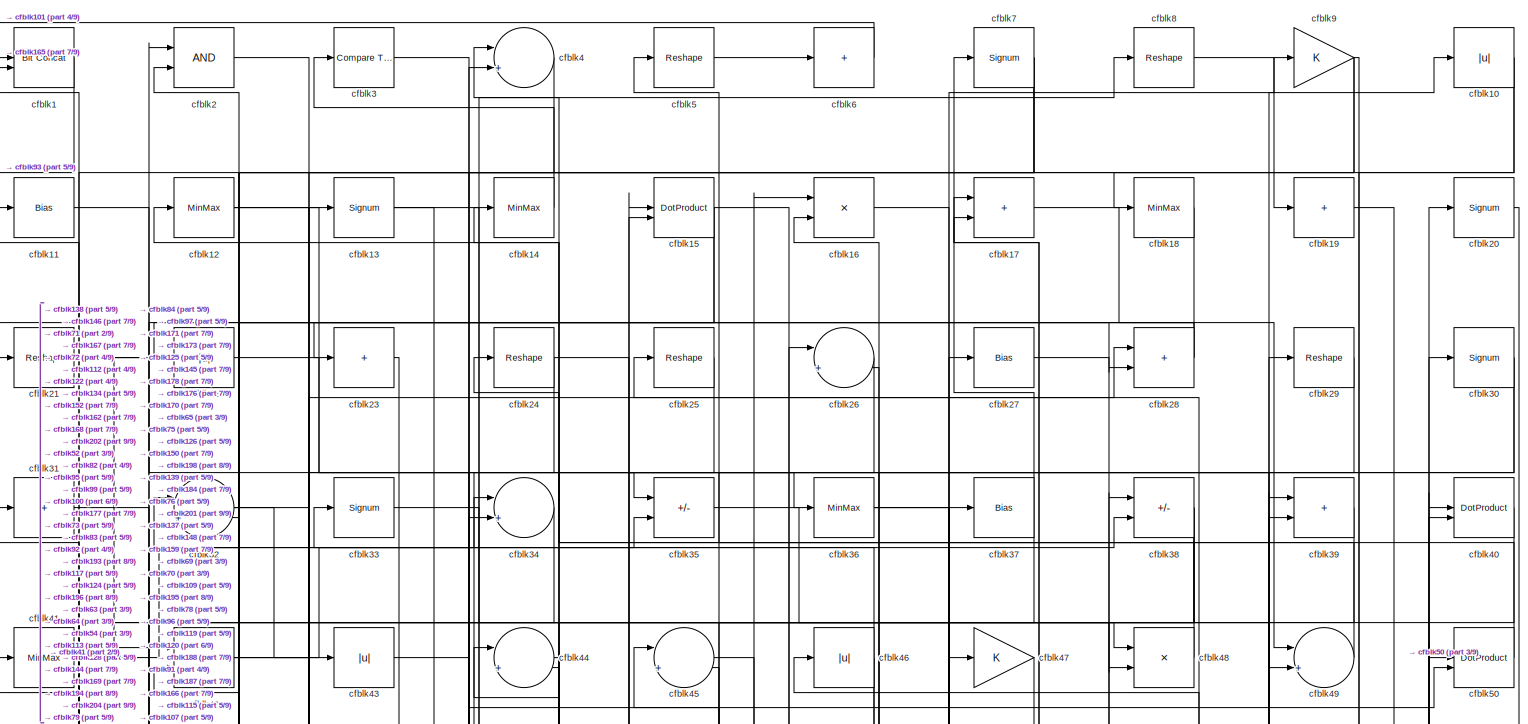
[diagram: root canvas - part 1/9, full width, top band]
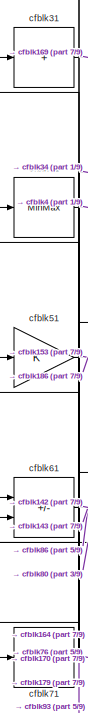
[diagram: root canvas - part 2/9, top left region]
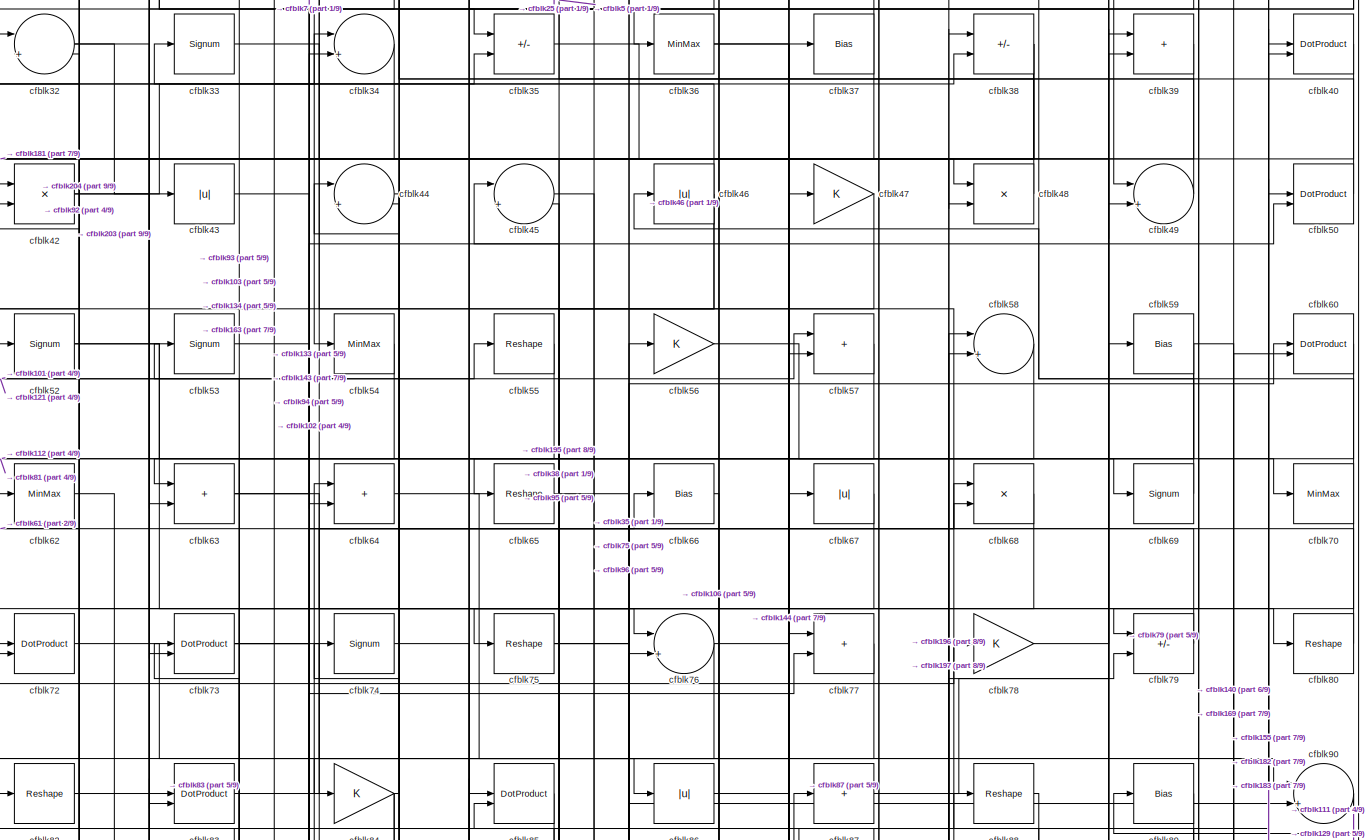
[diagram: root canvas - part 3/9, full width, top band]
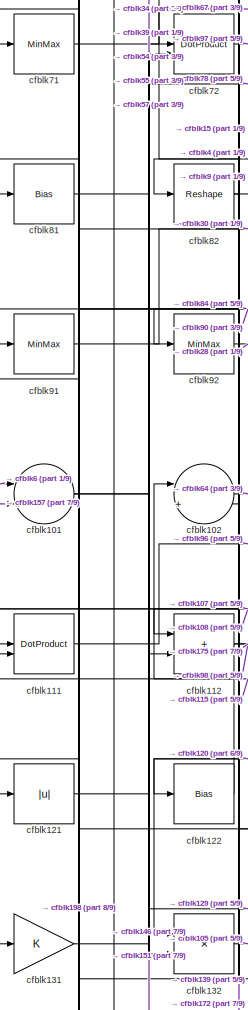
[diagram: root canvas - part 4/9, middle left region]
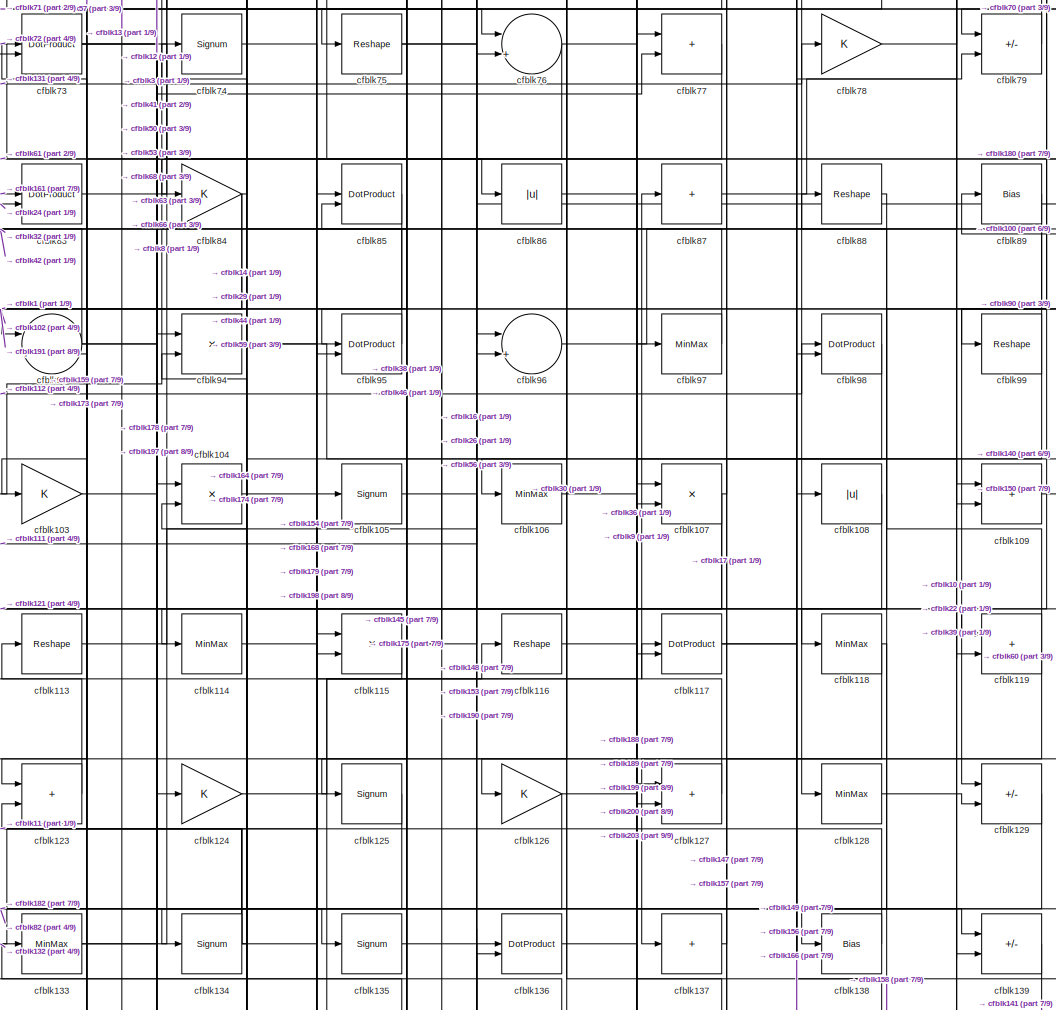
[diagram: root canvas - part 5/9, central region]
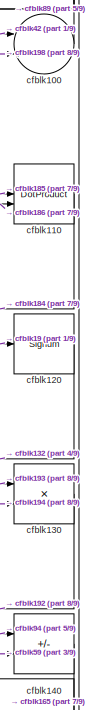
[diagram: root canvas - part 6/9, middle right region]
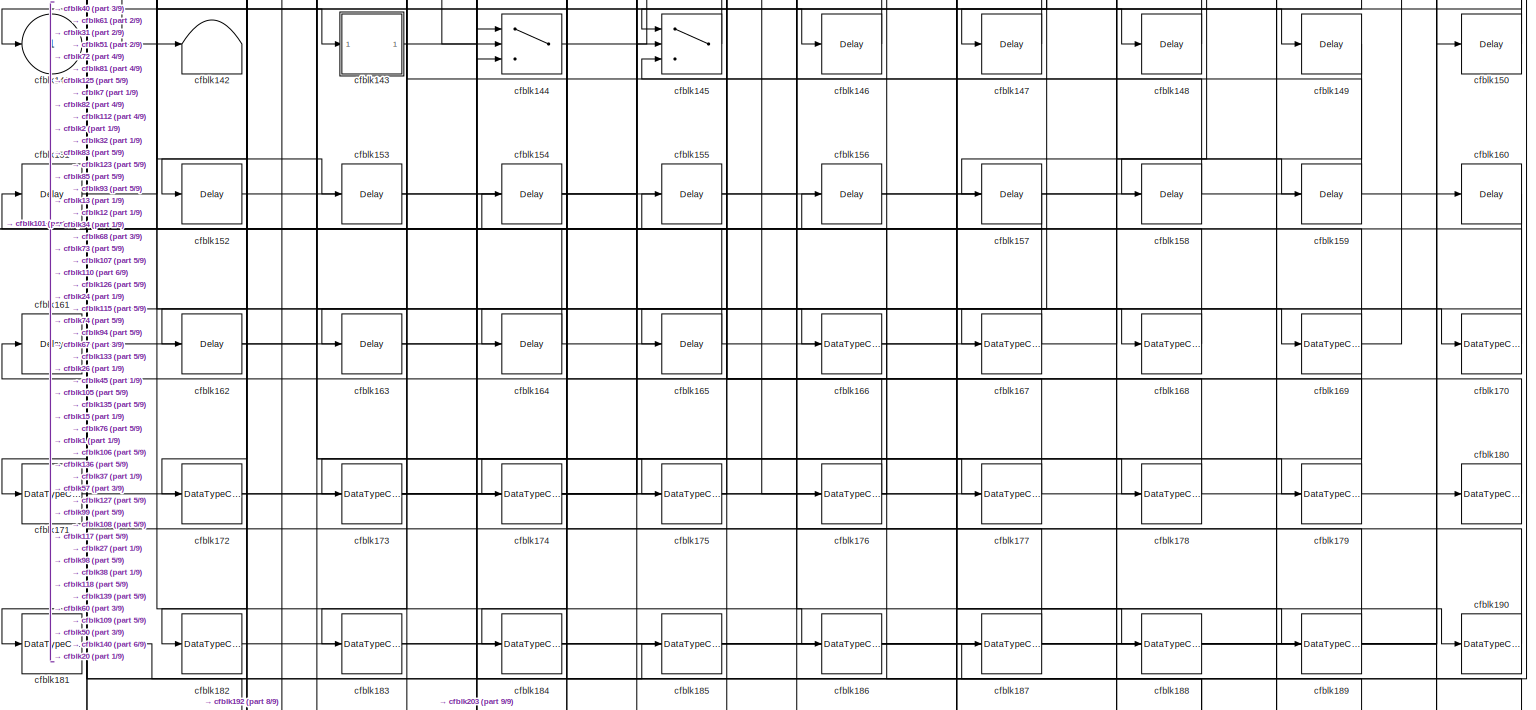
[diagram: root canvas - part 7/9, full width, bottom band]
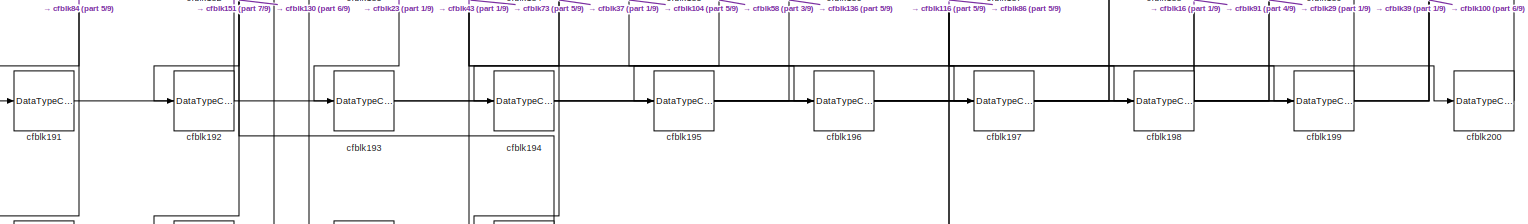
[diagram: root canvas - part 8/9, full width, bottom band]
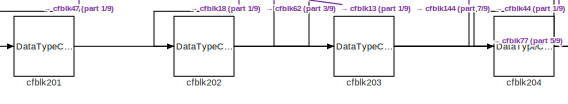
[diagram: root canvas - part 9/9, bottom left region]
MODEL slx_3ed110b4a534
KIND model
CONFIG AbsTol = auto
CONFIG EnableMultiTasking = off
CONFIG FixedStep = auto
CONFIG MaxStep = auto
CONFIG MinStep = auto
CONFIG RelTol = 1e-3
CONFIG SampleTimeConstraint = Unconstrained
CONFIG SolverName = VariableStepAuto
CONFIG StartTime = 0.0
CONFIG StopTime = 10.0
BLOCK [Reference] cfblk1  REF=hdlsllib/Logic and Bit
Operations/Bit Concat
  SourceBlock = hdlsllib/Logic and Bit\nOperations/Bit Concat
  SourceType = Bit Concat
BLOCK [Abs] cfblk10
  SaturateOnIntegerOverflow = off
BLOCK [Sum] cfblk100
  Inputs = |++
BLOCK [Sum] cfblk101
  Inputs = |++
BLOCK [Sum] cfblk102
  Inputs = |++
BLOCK [Gain] cfblk103
BLOCK [Product] cfblk104
  Inputs = */
  RndMeth = Zero
  SaturateOnIntegerOverflow = on
BLOCK [Signum] cfblk105
BLOCK [MinMax] cfblk106
BLOCK [Product] cfblk107
  Inputs = */
  RndMeth = Zero
  SaturateOnIntegerOverflow = on
BLOCK [Abs] cfblk108
  SaturateOnIntegerOverflow = off
BLOCK [Sum] cfblk109
  IconShape = rectangular
BLOCK [Bias] cfblk11
  Bias = 0.0
  SaturateOnIntegerOverflow = off
BLOCK [DotProduct] cfblk110
  OutDataTypeStr = Inherit: Inherit via internal rule
BLOCK [DotProduct] cfblk111
  OutDataTypeStr = Inherit: Inherit via internal rule
BLOCK [Sum] cfblk112
  IconShape = rectangular
BLOCK [Reshape] cfblk113
BLOCK [MinMax] cfblk114
BLOCK [Product] cfblk115
  Inputs = */
  RndMeth = Zero
  SaturateOnIntegerOverflow = on
BLOCK [Reshape] cfblk116
BLOCK [DotProduct] cfblk117
  OutDataTypeStr = Inherit: Inherit via internal rule
BLOCK [MinMax] cfblk118
BLOCK [Sum] cfblk119
  IconShape = rectangular
BLOCK [MinMax] cfblk12
BLOCK [Signum] cfblk120
BLOCK [Abs] cfblk121
  SaturateOnIntegerOverflow = off
BLOCK [Bias] cfblk122
  Bias = 0.0
  SaturateOnIntegerOverflow = off
BLOCK [Sum] cfblk123
  IconShape = rectangular
BLOCK [Gain] cfblk124
BLOCK [Signum] cfblk125
BLOCK [Gain] cfblk126
BLOCK [Sum] cfblk127
  IconShape = rectangular
BLOCK [MinMax] cfblk128
BLOCK [Sum] cfblk129
  IconShape = rectangular
  Inputs = +-
BLOCK [Signum] cfblk13
BLOCK [Product] cfblk130
  Inputs = */
  RndMeth = Zero
  SaturateOnIntegerOverflow = on
BLOCK [Gain] cfblk131
BLOCK [Product] cfblk132
  Inputs = */
  RndMeth = Zero
  SaturateOnIntegerOverflow = on
BLOCK [MinMax] cfblk133
BLOCK [Signum] cfblk134
BLOCK [Signum] cfblk135
BLOCK [DotProduct] cfblk136
  OutDataTypeStr = Inherit: Inherit via internal rule
BLOCK [Sum] cfblk137
  IconShape = rectangular
  Inputs = +
BLOCK [Bias] cfblk138
  Bias = 0.0
  SaturateOnIntegerOverflow = off
BLOCK [Sum] cfblk139
  IconShape = rectangular
  Inputs = +-
BLOCK [MinMax] cfblk14
BLOCK [Sum] cfblk140
  IconShape = rectangular
  Inputs = +-
BLOCK [Outport] cfblk141
  VectorParamsAs1DForOutWhenUnconnected = off
BLOCK [Terminator] cfblk142
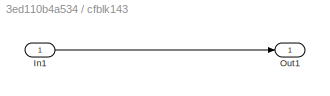
BLOCK [SubSystem] cfblk143
  LibrarySourceBlock = hdlsllib/Ports &\nSubsystems/Subsystem
BLOCK [Inport] cfblk143/In1
BLOCK [Outport] cfblk143/Out1
BLOCK [Switch] cfblk144
  InputSameDT = off
  SaturateOnIntegerOverflow = off
BLOCK [Switch] cfblk145
  InputSameDT = off
  SaturateOnIntegerOverflow = off
BLOCK [Delay] cfblk146
  InputPortMap = u0
  SampleTime = 1
BLOCK [Delay] cfblk147
  InputPortMap = u0
  SampleTime = 1
BLOCK [Delay] cfblk148
  InputPortMap = u0
  SampleTime = 1
BLOCK [Delay] cfblk149
  InputPortMap = u0
  SampleTime = 1
BLOCK [DotProduct] cfblk15
  OutDataTypeStr = Inherit: Inherit via internal rule
BLOCK [Delay] cfblk150
  InputPortMap = u0
  SampleTime = 1
BLOCK [Delay] cfblk151
  InputPortMap = u0
  SampleTime = 1
BLOCK [Delay] cfblk152
  InputPortMap = u0
  SampleTime = 1
BLOCK [Delay] cfblk153
  InputPortMap = u0
  SampleTime = 1
BLOCK [Delay] cfblk154
  InputPortMap = u0
  SampleTime = 1
BLOCK [Delay] cfblk155
  InputPortMap = u0
  SampleTime = 1
BLOCK [Delay] cfblk156
  InputPortMap = u0
  SampleTime = 1
BLOCK [Delay] cfblk157
  InputPortMap = u0
  SampleTime = 1
BLOCK [Delay] cfblk158
  InputPortMap = u0
  SampleTime = 1
BLOCK [Delay] cfblk159
  InputPortMap = u0
  SampleTime = 1
BLOCK [Product] cfblk16
  Inputs = */
  RndMeth = Zero
  SaturateOnIntegerOverflow = on
BLOCK [Delay] cfblk160
  InputPortMap = u0
  SampleTime = 1
BLOCK [Delay] cfblk161
  InputPortMap = u0
  SampleTime = 1
BLOCK [Delay] cfblk162
  InputPortMap = u0
  SampleTime = 1
BLOCK [Delay] cfblk163
  InputPortMap = u0
  SampleTime = 1
BLOCK [Delay] cfblk164
  InputPortMap = u0
  SampleTime = 1
BLOCK [Delay] cfblk165
  InputPortMap = u0
  SampleTime = 1
BLOCK [DataTypeConversion] cfblk166
  OutDataTypeStr = uint8
  RndMeth = Floor
  SaturateOnIntegerOverflow = off
BLOCK [DataTypeConversion] cfblk167
  OutDataTypeStr = uint8
  RndMeth = Floor
  SaturateOnIntegerOverflow = off
BLOCK [DataTypeConversion] cfblk168
  OutDataTypeStr = uint8
  RndMeth = Floor
  SaturateOnIntegerOverflow = off
BLOCK [DataTypeConversion] cfblk169
  RndMeth = Floor
  SaturateOnIntegerOverflow = off
BLOCK [Sum] cfblk17
  IconShape = rectangular
BLOCK [DataTypeConversion] cfblk170
  OutDataTypeStr = uint8
  RndMeth = Floor
  SaturateOnIntegerOverflow = off
BLOCK [DataTypeConversion] cfblk171
  OutDataTypeStr = uint8
  RndMeth = Floor
  SaturateOnIntegerOverflow = off
BLOCK [DataTypeConversion] cfblk172
  OutDataTypeStr = uint8
  RndMeth = Floor
  SaturateOnIntegerOverflow = off
BLOCK [DataTypeConversion] cfblk173
  RndMeth = Floor
  SaturateOnIntegerOverflow = off
BLOCK [DataTypeConversion] cfblk174
  OutDataTypeStr = uint8
  RndMeth = Floor
  SaturateOnIntegerOverflow = off
BLOCK [DataTypeConversion] cfblk175
  OutDataTypeStr = uint8
  RndMeth = Floor
  SaturateOnIntegerOverflow = off
BLOCK [DataTypeConversion] cfblk176
  RndMeth = Floor
  SaturateOnIntegerOverflow = off
BLOCK [DataTypeConversion] cfblk177
  OutDataTypeStr = uint8
  RndMeth = Floor
  SaturateOnIntegerOverflow = off
BLOCK [DataTypeConversion] cfblk178
  OutDataTypeStr = uint8
  RndMeth = Floor
  SaturateOnIntegerOverflow = off
BLOCK [DataTypeConversion] cfblk179
  OutDataTypeStr = uint8
  RndMeth = Floor
  SaturateOnIntegerOverflow = off
BLOCK [MinMax] cfblk18
BLOCK [DataTypeConversion] cfblk180
  OutDataTypeStr = uint8
  RndMeth = Floor
  SaturateOnIntegerOverflow = off
BLOCK [DataTypeConversion] cfblk181
  OutDataTypeStr = uint8
  RndMeth = Floor
  SaturateOnIntegerOverflow = off
BLOCK [DataTypeConversion] cfblk182
  OutDataTypeStr = uint8
  RndMeth = Floor
  SaturateOnIntegerOverflow = off
BLOCK [DataTypeConversion] cfblk183
  OutDataTypeStr = uint8
  RndMeth = Floor
  SaturateOnIntegerOverflow = off
BLOCK [DataTypeConversion] cfblk184
  OutDataTypeStr = uint8
  RndMeth = Floor
  SaturateOnIntegerOverflow = off
BLOCK [DataTypeConversion] cfblk185
  OutDataTypeStr = uint8
  RndMeth = Floor
  SaturateOnIntegerOverflow = off
BLOCK [DataTypeConversion] cfblk186
  OutDataTypeStr = uint8
  RndMeth = Floor
  SaturateOnIntegerOverflow = off
BLOCK [DataTypeConversion] cfblk187
  OutDataTypeStr = uint8
  RndMeth = Floor
  SaturateOnIntegerOverflow = off
BLOCK [DataTypeConversion] cfblk188
  OutDataTypeStr = uint8
  RndMeth = Floor
  SaturateOnIntegerOverflow = off
BLOCK [DataTypeConversion] cfblk189
  OutDataTypeStr = uint8
  RndMeth = Floor
  SaturateOnIntegerOverflow = off
BLOCK [Sum] cfblk19
  IconShape = rectangular
  Inputs = +
BLOCK [DataTypeConversion] cfblk190
  OutDataTypeStr = uint8
  RndMeth = Floor
  SaturateOnIntegerOverflow = off
BLOCK [DataTypeConversion] cfblk191
  OutDataTypeStr = uint8
  RndMeth = Floor
  SaturateOnIntegerOverflow = off
BLOCK [DataTypeConversion] cfblk192
  OutDataTypeStr = uint8
  RndMeth = Floor
  SaturateOnIntegerOverflow = off
BLOCK [DataTypeConversion] cfblk193
  OutDataTypeStr = uint8
  RndMeth = Floor
  SaturateOnIntegerOverflow = off
BLOCK [DataTypeConversion] cfblk194
  OutDataTypeStr = uint8
  RndMeth = Floor
  SaturateOnIntegerOverflow = off
BLOCK [DataTypeConversion] cfblk195
  RndMeth = Floor
  SaturateOnIntegerOverflow = off
BLOCK [DataTypeConversion] cfblk196
  OutDataTypeStr = uint8
  RndMeth = Floor
  SaturateOnIntegerOverflow = off
BLOCK [DataTypeConversion] cfblk197
  OutDataTypeStr = uint8
  RndMeth = Floor
  SaturateOnIntegerOverflow = off
BLOCK [DataTypeConversion] cfblk198
  RndMeth = Floor
  SaturateOnIntegerOverflow = off
BLOCK [DataTypeConversion] cfblk199
  OutDataTypeStr = uint8
  RndMeth = Floor
  SaturateOnIntegerOverflow = off
BLOCK [Logic] cfblk2
  AllPortsSameDT = off
  OutDataTypeStr = boolean
BLOCK [Signum] cfblk20
BLOCK [DataTypeConversion] cfblk200
  OutDataTypeStr = uint8
  RndMeth = Floor
  SaturateOnIntegerOverflow = off
BLOCK [DataTypeConversion] cfblk201
  OutDataTypeStr = uint8
  RndMeth = Floor
  SaturateOnIntegerOverflow = off
BLOCK [DataTypeConversion] cfblk202
  OutDataTypeStr = uint8
  RndMeth = Floor
  SaturateOnIntegerOverflow = off
BLOCK [DataTypeConversion] cfblk203
  RndMeth = Floor
  SaturateOnIntegerOverflow = off
BLOCK [DataTypeConversion] cfblk204
  OutDataTypeStr = uint8
  RndMeth = Floor
  SaturateOnIntegerOverflow = off
BLOCK [Reshape] cfblk21
BLOCK [Abs] cfblk22
  SaturateOnIntegerOverflow = off
BLOCK [Sum] cfblk23
  IconShape = rectangular
  Inputs = +
BLOCK [Reshape] cfblk24
BLOCK [Reshape] cfblk25
BLOCK [Sum] cfblk26
  Inputs = |++
BLOCK [Bias] cfblk27
  Bias = 0.0
  SaturateOnIntegerOverflow = off
BLOCK [Sum] cfblk28
  IconShape = rectangular
BLOCK [Reshape] cfblk29
BLOCK [Reference] cfblk3  REF=hdlsllib/Logic and Bit
Operations/Compare
To Constant
  SourceBlock = hdlsllib/Logic and Bit\nOperations/Compare\nTo Constant
  SourceType = Compare To Constant
BLOCK [Signum] cfblk30
BLOCK [Sum] cfblk31
  IconShape = rectangular
  Inputs = +
BLOCK [Sum] cfblk32
  Inputs = |++
BLOCK [Signum] cfblk33
BLOCK [Sum] cfblk34
  Inputs = |++
BLOCK [Sum] cfblk35
  IconShape = rectangular
  Inputs = +-
BLOCK [MinMax] cfblk36
BLOCK [Bias] cfblk37
  Bias = 0.0
  SaturateOnIntegerOverflow = off
BLOCK [Sum] cfblk38
  IconShape = rectangular
  Inputs = +-
BLOCK [Sum] cfblk39
  IconShape = rectangular
BLOCK [Sum] cfblk4
  Inputs = |++
BLOCK [DotProduct] cfblk40
  OutDataTypeStr = Inherit: Inherit via internal rule
BLOCK [MinMax] cfblk41
BLOCK [Product] cfblk42
  Inputs = */
  RndMeth = Zero
  SaturateOnIntegerOverflow = on
BLOCK [Abs] cfblk43
  SaturateOnIntegerOverflow = off
BLOCK [Sum] cfblk44
  Inputs = |++
BLOCK [Sum] cfblk45
  Inputs = |++
BLOCK [Abs] cfblk46
  SaturateOnIntegerOverflow = off
BLOCK [Gain] cfblk47
BLOCK [Product] cfblk48
  Inputs = */
  RndMeth = Zero
  SaturateOnIntegerOverflow = on
BLOCK [Sum] cfblk49
  Inputs = |++
BLOCK [Reshape] cfblk5
BLOCK [DotProduct] cfblk50
  OutDataTypeStr = Inherit: Inherit via internal rule
BLOCK [Gain] cfblk51
BLOCK [Signum] cfblk52
BLOCK [Signum] cfblk53
BLOCK [MinMax] cfblk54
BLOCK [Reshape] cfblk55
BLOCK [Gain] cfblk56
BLOCK [Sum] cfblk57
  IconShape = rectangular
BLOCK [Sum] cfblk58
  Inputs = |++
BLOCK [Bias] cfblk59
  Bias = 0.0
  SaturateOnIntegerOverflow = off
BLOCK [Sum] cfblk6
  IconShape = rectangular
  Inputs = +
BLOCK [DotProduct] cfblk60
  OutDataTypeStr = Inherit: Inherit via internal rule
BLOCK [Sum] cfblk61
  IconShape = rectangular
  Inputs = +-
BLOCK [MinMax] cfblk62
BLOCK [Sum] cfblk63
  IconShape = rectangular
BLOCK [Sum] cfblk64
  IconShape = rectangular
BLOCK [Reshape] cfblk65
BLOCK [Bias] cfblk66
  Bias = 0.0
  SaturateOnIntegerOverflow = off
BLOCK [Abs] cfblk67
  SaturateOnIntegerOverflow = off
BLOCK [Product] cfblk68
  Inputs = */
  RndMeth = Zero
  SaturateOnIntegerOverflow = on
BLOCK [Signum] cfblk69
BLOCK [Signum] cfblk7
BLOCK [MinMax] cfblk70
BLOCK [MinMax] cfblk71
BLOCK [DotProduct] cfblk72
  OutDataTypeStr = Inherit: Inherit via internal rule
BLOCK [DotProduct] cfblk73
  OutDataTypeStr = Inherit: Inherit via internal rule
BLOCK [Signum] cfblk74
BLOCK [Reshape] cfblk75
BLOCK [Sum] cfblk76
  Inputs = |++
BLOCK [Sum] cfblk77
  IconShape = rectangular
BLOCK [Gain] cfblk78
BLOCK [Sum] cfblk79
  IconShape = rectangular
  Inputs = +-
BLOCK [Reshape] cfblk8
BLOCK [Reshape] cfblk80
BLOCK [Bias] cfblk81
  Bias = 0.0
  SaturateOnIntegerOverflow = off
BLOCK [Reshape] cfblk82
BLOCK [DotProduct] cfblk83
  OutDataTypeStr = Inherit: Inherit via internal rule
BLOCK [Gain] cfblk84
BLOCK [DotProduct] cfblk85
  OutDataTypeStr = Inherit: Inherit via internal rule
BLOCK [Abs] cfblk86
  SaturateOnIntegerOverflow = off
BLOCK [Sum] cfblk87
  IconShape = rectangular
  Inputs = +
BLOCK [Reshape] cfblk88
BLOCK [Bias] cfblk89
  Bias = 0.0
  SaturateOnIntegerOverflow = off
BLOCK [Gain] cfblk9
BLOCK [Sum] cfblk90
  Inputs = |++
BLOCK [MinMax] cfblk91
BLOCK [MinMax] cfblk92
BLOCK [Sum] cfblk93
  Inputs = |++
BLOCK [Product] cfblk94
  Inputs = */
  RndMeth = Zero
  SaturateOnIntegerOverflow = on
BLOCK [DotProduct] cfblk95
  OutDataTypeStr = Inherit: Inherit via internal rule
BLOCK [Sum] cfblk96
  Inputs = |++
BLOCK [MinMax] cfblk97
BLOCK [DotProduct] cfblk98
  OutDataTypeStr = Inherit: Inherit via internal rule
BLOCK [Reshape] cfblk99
LINE cfblk100:1 -> cfblk89:1
NET cfblk101:1 -> cfblk34:1, cfblk55:1
LINE cfblk102:1 -> cfblk64:1
LINE cfblk103:1 -> cfblk68:1
LINE cfblk104:1 -> cfblk198:1
LINE cfblk105:1 -> cfblk148:1
LINE cfblk106:1 -> cfblk188:1
NET cfblk107:1 -> cfblk121:1, cfblk174:1, cfblk17:2
LINE cfblk108:1 -> cfblk131:1
LINE cfblk109:1 -> cfblk150:1
NET cfblk10:1 -> cfblk21:1, cfblk99:1
LINE cfblk110:1 -> cfblk184:1
LINE cfblk111:1 -> cfblk96:2
NET cfblk112:1 -> cfblk175:1, cfblk98:1
LINE cfblk113:1 -> cfblk8:1
LINE cfblk114:1 -> cfblk127:2
NET cfblk115:1 -> cfblk111:2, cfblk16:1, cfblk26:1
LINE cfblk116:1 -> cfblk199:1
NET cfblk117:1 -> cfblk149:1, cfblk79:2
NET cfblk118:1 -> cfblk157:1, cfblk158:1
NET cfblk119:1 -> cfblk137:1, cfblk88:1
LINE cfblk11:1 -> cfblk35:1
LINE cfblk120:1 -> cfblk132:1
LINE cfblk121:1 -> cfblk57:1
LINE cfblk122:1 -> cfblk102:1
LINE cfblk123:1 -> cfblk113:1
LINE cfblk124:1 -> cfblk117:1
LINE cfblk125:1 -> cfblk182:1
NET cfblk126:1 -> cfblk107:2, cfblk164:1
LINE cfblk127:1 -> cfblk87:1
LINE cfblk128:1 -> cfblk129:2
LINE cfblk129:1 -> cfblk132:2
NET cfblk12:1 -> cfblk117:2, cfblk144:1
LINE cfblk130:1 -> cfblk192:1
LINE cfblk131:1 -> cfblk78:1
LINE cfblk132:1 -> cfblk105:1
NET cfblk133:1 -> cfblk56:1, cfblk77:2
NET cfblk134:1 -> cfblk116:1, cfblk32:2, cfblk53:1, cfblk73:1, cfblk94:2
LINE cfblk135:1 -> cfblk190:1
LINE cfblk136:1 -> cfblk189:1
LINE cfblk137:1 -> cfblk17:1
LINE cfblk138:1 -> cfblk11:1
LINE cfblk139:1 -> cfblk141:1
NET cfblk13:1 -> cfblk128:1, cfblk144:2
LINE cfblk140:1 -> cfblk165:1
LINE cfblk143/In1:1 -> cfblk143/Out1:1
LINE cfblk143:1 -> cfblk68:2
LINE cfblk144:1 -> cfblk67:1
LINE cfblk145:1 -> cfblk133:1
LINE cfblk146:1 -> cfblk1:2
LINE cfblk147:1 -> cfblk127:1
LINE cfblk148:1 -> cfblk38:1
LINE cfblk149:1 -> cfblk167:1
LINE cfblk14:1 -> cfblk3:1
LINE cfblk150:1 -> cfblk26:2
LINE cfblk151:1 -> cfblk72:1
LINE cfblk152:1 -> cfblk145:2
LINE cfblk153:1 -> cfblk76:2
LINE cfblk154:1 -> cfblk115:1
LINE cfblk155:1 -> cfblk50:1
LINE cfblk156:1 -> cfblk98:2
LINE cfblk157:1 -> cfblk101:2
LINE cfblk158:1 -> cfblk145:3
LINE cfblk159:1 -> cfblk93:2
NET cfblk15:1 -> cfblk162:1, cfblk170:1, cfblk82:1
LINE cfblk160:1 -> cfblk171:1
LINE cfblk161:1 -> cfblk83:1
LINE cfblk162:1 -> cfblk34:2
LINE cfblk163:1 -> cfblk57:2
LINE cfblk164:1 -> cfblk61:2
LINE cfblk165:1 -> cfblk1:1
LINE cfblk166:1 -> cfblk108:1
LINE cfblk167:1 -> cfblk2:1
LINE cfblk168:1 -> cfblk2:2
NET cfblk169:1 -> cfblk183:1, cfblk24:1, cfblk60:2
LINE cfblk16:1 -> cfblk107:1
LINE cfblk170:1 -> cfblk31:1
LINE cfblk171:1 -> cfblk15:1
LINE cfblk172:1 -> cfblk160:1
NET cfblk173:1 -> cfblk123:2, cfblk15:2, cfblk27:1
LINE cfblk174:1 -> cfblk85:1
LINE cfblk175:1 -> cfblk85:2
NET cfblk176:1 -> cfblk155:1, cfblk156:1
LINE cfblk177:1 -> cfblk45:1
LINE cfblk178:1 -> cfblk45:2
LINE cfblk179:1 -> cfblk51:1
LINE cfblk17:1 -> cfblk49:1
LINE cfblk180:1 -> cfblk74:1
LINE cfblk181:1 -> cfblk185:1
LINE cfblk182:1 -> cfblk40:1
LINE cfblk183:1 -> cfblk40:2
LINE cfblk184:1 -> cfblk37:1
LINE cfblk185:1 -> cfblk110:1
LINE cfblk186:1 -> cfblk110:2
LINE cfblk187:1 -> cfblk161:1
LINE cfblk188:1 -> cfblk20:1
LINE cfblk189:1 -> cfblk154:1
LINE cfblk18:1 -> cfblk202:1
LINE cfblk190:1 -> cfblk136:1
LINE cfblk191:1 -> cfblk136:2
LINE cfblk192:1 -> cfblk151:1
LINE cfblk193:1 -> cfblk130:1
LINE cfblk194:1 -> cfblk130:2
NET cfblk195:1 -> cfblk29:1, cfblk39:2
LINE cfblk196:1 -> cfblk58:1
LINE cfblk197:1 -> cfblk58:2
NET cfblk198:1 -> cfblk100:2, cfblk16:2, cfblk91:1
LINE cfblk199:1 -> cfblk104:1
LINE cfblk19:1 -> cfblk120:1
LINE cfblk1:1 -> cfblk93:1
LINE cfblk200:1 -> cfblk104:2
LINE cfblk201:1 -> cfblk13:1
LINE cfblk202:1 -> cfblk47:1
NET cfblk203:1 -> cfblk144:3, cfblk77:1
LINE cfblk204:1 -> cfblk62:1
LINE cfblk20:1 -> cfblk187:1
NET cfblk21:1 -> cfblk28:2, cfblk42:1, cfblk48:1
LINE cfblk22:1 -> cfblk109:1
LINE cfblk23:1 -> cfblk193:1
NET cfblk24:1 -> cfblk36:1, cfblk83:2
LINE cfblk25:1 -> cfblk54:1
LINE cfblk26:1 -> cfblk145:1
LINE cfblk27:1 -> cfblk159:1
NET cfblk28:1 -> cfblk22:1, cfblk23:1
LINE cfblk29:1 -> cfblk84:1
LINE cfblk2:1 -> cfblk166:1
NET cfblk30:1 -> cfblk126:1, cfblk95:2
LINE cfblk31:1 -> cfblk169:1
NET cfblk32:1 -> cfblk177:1, cfblk43:1
LINE cfblk33:1 -> cfblk48:2
LINE cfblk34:1 -> cfblk71:1
LINE cfblk35:1 -> cfblk49:2
NET cfblk36:1 -> cfblk109:2, cfblk139:2
NET cfblk37:1 -> cfblk194:1, cfblk7:1
NET cfblk38:1 -> cfblk125:1, cfblk52:1, cfblk73:2
LINE cfblk39:1 -> cfblk72:2
LINE cfblk3:1 -> cfblk124:1
LINE cfblk40:1 -> cfblk181:1
LINE cfblk41:1 -> cfblk4:2
NET cfblk42:1 -> cfblk100:1, cfblk38:2
LINE cfblk43:1 -> cfblk196:1
LINE cfblk44:1 -> cfblk204:1
LINE cfblk45:1 -> cfblk176:1
NET cfblk46:1 -> cfblk33:1, cfblk65:1, cfblk75:1
LINE cfblk47:1 -> cfblk201:1
LINE cfblk48:1 -> cfblk4:1
LINE cfblk49:1 -> cfblk12:1
LINE cfblk4:1 -> cfblk122:1
LINE cfblk50:1 -> cfblk5:1
NET cfblk51:1 -> cfblk153:1, cfblk186:1
NET cfblk52:1 -> cfblk69:1, cfblk80:1
LINE cfblk53:1 -> cfblk94:1
LINE cfblk54:1 -> cfblk112:2
LINE cfblk55:1 -> cfblk81:1
LINE cfblk56:1 -> cfblk70:1
LINE cfblk57:1 -> cfblk103:1
LINE cfblk58:1 -> cfblk195:1
NET cfblk59:1 -> cfblk134:1, cfblk140:2, cfblk63:1
LINE cfblk5:1 -> cfblk6:1
LINE cfblk60:1 -> cfblk79:1
NET cfblk61:1 -> cfblk142:1, cfblk143:1, cfblk86:1
LINE cfblk62:1 -> cfblk203:1
NET cfblk63:1 -> cfblk35:2, cfblk96:1
LINE cfblk64:1 -> cfblk90:1
LINE cfblk65:1 -> cfblk90:2
LINE cfblk66:1 -> cfblk106:1
LINE cfblk67:1 -> cfblk92:1
LINE cfblk68:1 -> cfblk163:1
LINE cfblk69:1 -> cfblk46:1
LINE cfblk6:1 -> cfblk101:1
NET cfblk70:1 -> cfblk25:1, cfblk95:1
LINE cfblk71:1 -> cfblk76:1
LINE cfblk72:1 -> cfblk97:1
NET cfblk73:1 -> cfblk178:1, cfblk180:1, cfblk197:1
LINE cfblk74:1 -> cfblk179:1
NET cfblk75:1 -> cfblk119:2, cfblk60:1
NET cfblk76:1 -> cfblk115:2, cfblk9:1
LINE cfblk77:1 -> cfblk123:1
LINE cfblk78:1 -> cfblk10:1
LINE cfblk79:1 -> cfblk44:1
NET cfblk7:1 -> cfblk152:1, cfblk63:2, cfblk64:2
LINE cfblk80:1 -> cfblk61:1
LINE cfblk81:1 -> cfblk146:1
NET cfblk82:1 -> cfblk139:1, cfblk172:1
LINE cfblk83:1 -> cfblk66:1
NET cfblk84:1 -> cfblk102:2, cfblk191:1, cfblk44:2
LINE cfblk85:1 -> cfblk173:1
LINE cfblk86:1 -> cfblk200:1
LINE cfblk87:1 -> cfblk59:1
LINE cfblk88:1 -> cfblk118:1
LINE cfblk89:1 -> cfblk138:1
LINE cfblk8:1 -> cfblk19:1
NET cfblk90:1 -> cfblk111:1, cfblk129:1
LINE cfblk91:1 -> cfblk30:1
LINE cfblk92:1 -> cfblk28:1
NET cfblk93:1 -> cfblk135:1, cfblk41:1, cfblk50:2
NET cfblk94:1 -> cfblk140:1, cfblk168:1
LINE cfblk95:1 -> cfblk32:1
LINE cfblk96:1 -> cfblk39:1
LINE cfblk97:1 -> cfblk14:1
LINE cfblk98:1 -> cfblk114:1
NET cfblk99:1 -> cfblk147:1, cfblk42:2
NET cfblk9:1 -> cfblk112:1, cfblk119:1, cfblk18:1
note: NET lines group one-source signal fan-out (src -> all destinations, sorted); 1:1 wires keep LINE
